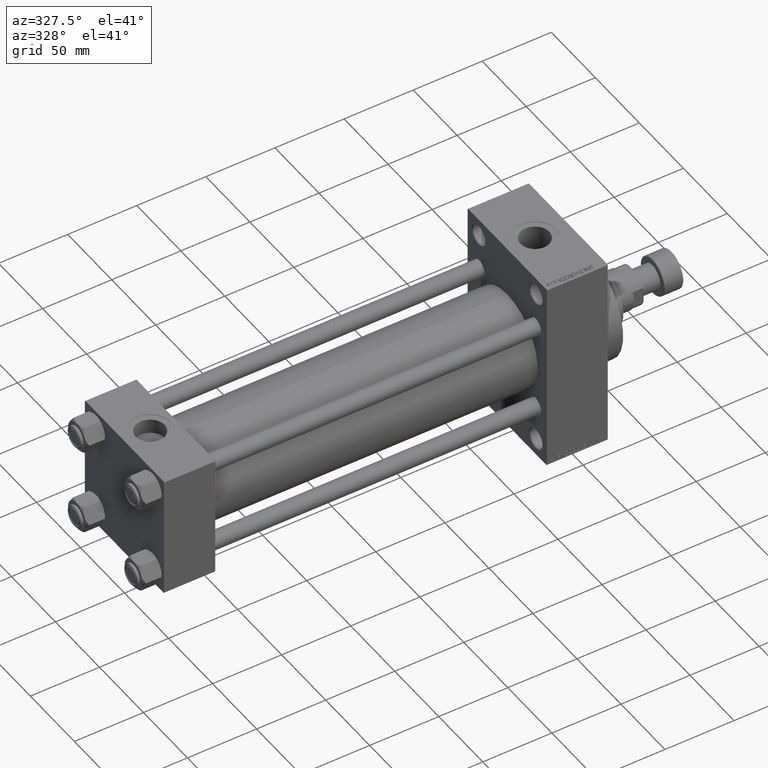
[diagram: clean part render]
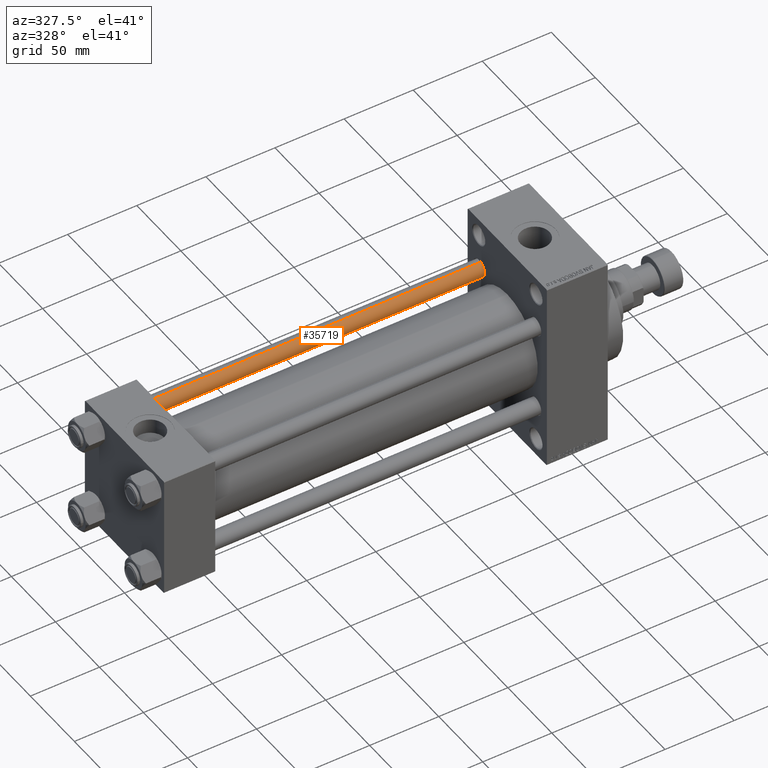
[diagram: same view with one face highlighted and labeled with its STEP entity id]
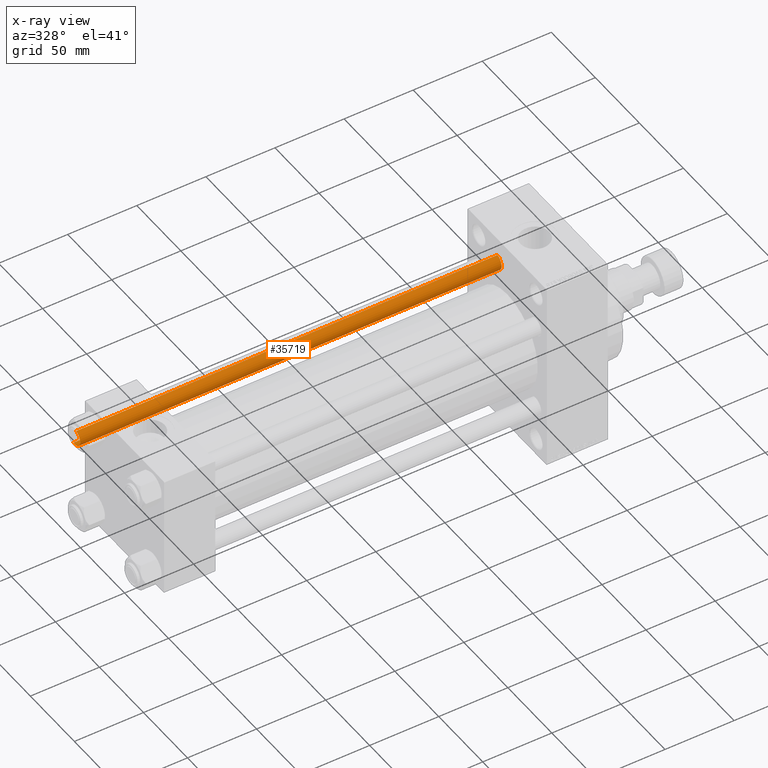
[diagram: x-ray of the same camera — body ghosted, the highlighted face saturated]
A machine part, auxiliary view. The second image highlights one B-rep face of the part: STEP entity #35719.
The next image is the same camera in x-ray: the body ghosted, the highlighted face saturated — about 0% of this face is hidden behind the body in this view.
In plain terms, the highlighted cylindrical surface (edge-blend (fillet) strip) has radius 6 mm, axis along (-1, -0, 0).
Its self-contained STEP definition (entity closure, byte-faithful):
#147 = CARTESIAN_POINT ( 'NONE',  ( -6.000000000000000888, 0.000000000000000000, 0.5000000000000004441 ) ) ;
#165 = VERTEX_POINT ( 'NONE', #20367 ) ;
#1651 = CIRCLE ( 'NONE', #7273, 6.000000000000000888 ) ;
#1705 = EDGE_CURVE ( 'NONE', #165, #24337, #31218, .T. ) ;
#4801 = CARTESIAN_POINT ( 'NONE',  ( 6.000000000000000888, 7.347880794884120722E-16, 306.0000000000000000 ) ) ;
#4917 = CARTESIAN_POINT ( 'NONE',  ( 0.000000000000000000, 0.000000000000000000, 306.0000000000000000 ) ) ;
#6025 = EDGE_CURVE ( 'NONE', #12165, #42049, #1651, .T. ) ;
#7273 = AXIS2_PLACEMENT_3D ( 'NONE', #34507, #30734, #49127 ) ;
#11132 = AXIS2_PLACEMENT_3D ( 'NONE', #20053, #17011, #28344 ) ;
#11920 = ORIENTED_EDGE ( 'NONE', *, *, #12028, .T. ) ;
#12028 = EDGE_CURVE ( 'NONE', #24337, #12165, #31626, .T. ) ;
#12165 = VERTEX_POINT ( 'NONE', #147 ) ;
#12697 = FACE_OUTER_BOUND ( 'NONE', #20095, .T. ) ;
#14877 = ORIENTED_EDGE ( 'NONE', *, *, #37835, .F. ) ;
#16283 = CARTESIAN_POINT ( 'NONE',  ( -6.000000000000000888, 0.000000000000000000, 306.0000000000000000 ) ) ;
#17011 = DIRECTION ( 'NONE',  ( 0.000000000000000000, 0.000000000000000000, -1.000000000000000000 ) ) ;
#17202 = CYLINDRICAL_SURFACE ( 'NONE', #49229, 6.000000000000000888 ) ;
#20053 = CARTESIAN_POINT ( 'NONE',  ( 0.000000000000000000, 0.000000000000000000, 305.5000000000000000 ) ) ;
#20095 = EDGE_LOOP ( 'NONE', ( #14877, #38042, #11920, #36501 ) ) ;
#20147 = DIRECTION ( 'NONE',  ( -0.000000000000000000, -0.000000000000000000, -1.000000000000000000 ) ) ;
#20258 = DIRECTION ( 'NONE',  ( -0.000000000000000000, -0.000000000000000000, -1.000000000000000000 ) ) ;
#20367 = CARTESIAN_POINT ( 'NONE',  ( 6.000000000000000888, 7.347880794884120722E-16, 305.5000000000000000 ) ) ;
#24102 = DIRECTION ( 'NONE',  ( -0.000000000000000000, -0.000000000000000000, -1.000000000000000000 ) ) ;
#24337 = VERTEX_POINT ( 'NONE', #45359 ) ;
#24526 = DIRECTION ( 'NONE',  ( -1.000000000000000000, 0.000000000000000000, 0.000000000000000000 ) ) ;
#28344 = DIRECTION ( 'NONE',  ( 1.000000000000000000, 0.000000000000000000, 0.000000000000000000 ) ) ;
#30734 = DIRECTION ( 'NONE',  ( -0.000000000000000000, -0.000000000000000000, 1.000000000000000000 ) ) ;
#31218 = CIRCLE ( 'NONE', #11132, 6.000000000000000888 ) ;
#31626 = LINE ( 'NONE', #16283, #48630 ) ;
#32382 = VECTOR ( 'NONE', #20147, 1000.000000000000000 ) ;
#34507 = CARTESIAN_POINT ( 'NONE',  ( 0.000000000000000000, 0.000000000000000000, 0.5000000000000004441 ) ) ;
#35719 = ADVANCED_FACE ( 'NONE', ( #12697 ), #17202, .T. ) ;
#36501 = ORIENTED_EDGE ( 'NONE', *, *, #6025, .T. ) ;
#37835 = EDGE_CURVE ( 'NONE', #165, #42049, #39256, .T. ) ;
#38042 = ORIENTED_EDGE ( 'NONE', *, *, #1705, .T. ) ;
#39256 = LINE ( 'NONE', #4801, #32382 ) ;
#42049 = VERTEX_POINT ( 'NONE', #44615 ) ;
#44615 = CARTESIAN_POINT ( 'NONE',  ( 6.000000000000000888, 7.347880794884120722E-16, 0.5000000000000004441 ) ) ;
#45359 = CARTESIAN_POINT ( 'NONE',  ( -6.000000000000000888, 0.000000000000000000, 305.5000000000000000 ) ) ;
#48630 = VECTOR ( 'NONE', #24102, 1000.000000000000000 ) ;
#49127 = DIRECTION ( 'NONE',  ( 1.000000000000000000, 0.000000000000000000, 0.000000000000000000 ) ) ;
#49229 = AXIS2_PLACEMENT_3D ( 'NONE', #4917, #20258, #24526 ) ;